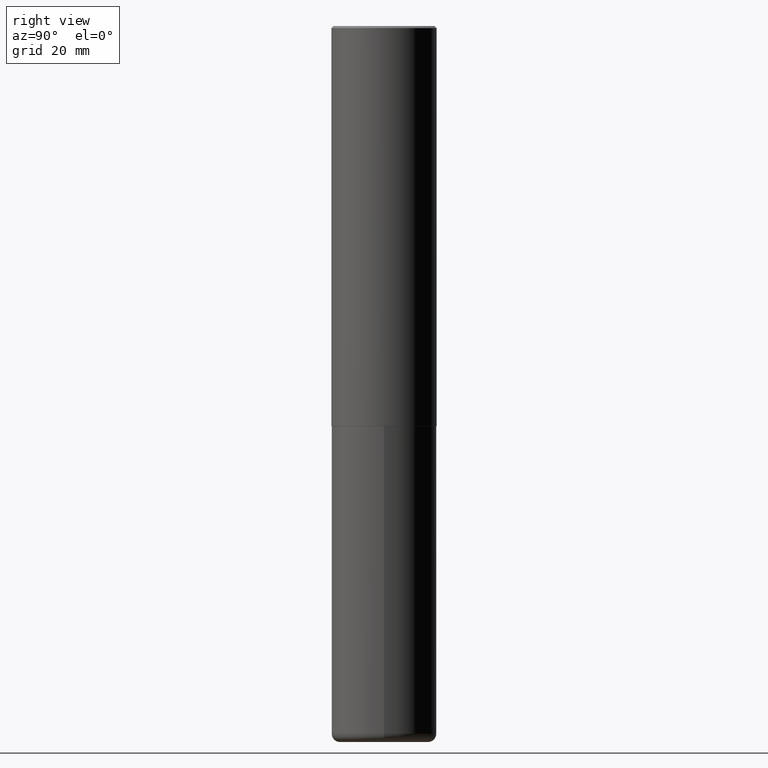
[diagram: clean part render]
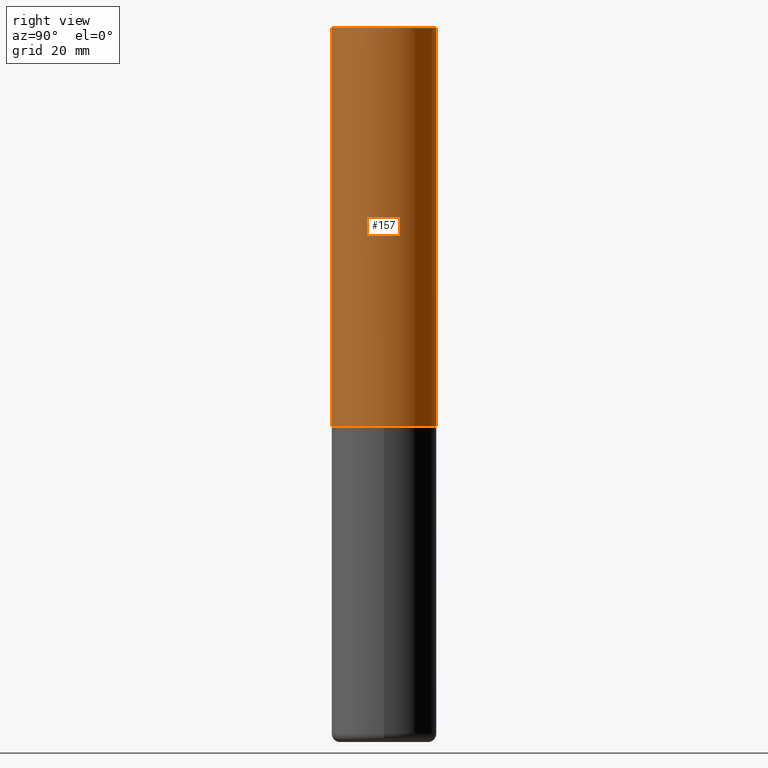
[diagram: same view with one face highlighted and labeled with its STEP entity id]
A machine part, right view. The second image highlights one B-rep face of the part: STEP entity #157.
In plain terms, the highlighted cylindrical surface (partial cylindrical patch) has radius 12.5006 mm, axis along (-0, 0, 1).
Its self-contained STEP definition (entity closure, byte-faithful):
#13 = CIRCLE ( 'NONE', #235, 0.4921500000000003650 ) ;
#14 = VECTOR ( 'NONE', #324, 39.37007874015748143 ) ;
#15 = VERTEX_POINT ( 'NONE', #89 ) ;
#23 = DIRECTION ( 'NONE',  ( -6.982962677686265922E-15, -1.000000000000000000, 3.330506545156063496E-15 ) ) ;
#40 = VERTEX_POINT ( 'NONE', #220 ) ;
#51 = EDGE_CURVE ( 'NONE', #15, #392, #354, .T. ) ;
#52 = CARTESIAN_POINT ( 'NONE',  ( 4.891953188903329688E-31, -6.981508314288001687E-17, -0.02000000000000010797 ) ) ;
#77 = ORIENTED_EDGE ( 'NONE', *, *, #51, .F. ) ;
#89 = CARTESIAN_POINT ( 'NONE',  ( -3.376394089603257868E-15, -0.4921499999999999764, -0.01999999999999839059 ) ) ;
#90 = DIRECTION ( 'NONE',  ( -6.982962677686265922E-15, -1.000000000000000000, 3.490754157143982552E-15 ) ) ;
#95 = CARTESIAN_POINT ( 'NONE',  ( 3.496936074043333291E-15, 0.4921500000000000874, -1.717974658438411319E-15 ) ) ;
#108 = CARTESIAN_POINT ( 'NONE',  ( 3.436665081823295777E-15, 0.4921499999999998098, -0.02000000000000182188 ) ) ;
#110 = EDGE_LOOP ( 'NONE', ( #173, #147, #77, #143 ) ) ;
#121 = FACE_OUTER_BOUND ( 'NONE', #110, .T. ) ;
#131 = DIRECTION ( 'NONE',  ( -2.445976594451651672E-29, 3.490754157143982552E-15, 1.000000000000000000 ) ) ;
#135 = AXIS2_PLACEMENT_3D ( 'NONE', #377, #340, #90 ) ;
#136 = EDGE_CURVE ( 'NONE', #308, #40, #13, .T. ) ;
#143 = ORIENTED_EDGE ( 'NONE', *, *, #202, .F. ) ;
#147 = ORIENTED_EDGE ( 'NONE', *, *, #223, .T. ) ;
#153 = DIRECTION ( 'NONE',  ( -6.982962677686265922E-15, -1.000000000000000000, 3.486624039460257331E-15 ) ) ;
#157 = ADVANCED_FACE ( 'NONE', ( #121 ), #252, .T. ) ;
#163 = AXIS2_PLACEMENT_3D ( 'NONE', #52, #287, #153 ) ;
#173 = ORIENTED_EDGE ( 'NONE', *, *, #136, .T. ) ;
#183 = DIRECTION ( 'NONE',  ( -2.445976594451651952E-29, 3.490754157143982552E-15, 1.000000000000000000 ) ) ;
#201 = LINE ( 'NONE', #95, #14 ) ;
#202 = EDGE_CURVE ( 'NONE', #308, #15, #260, .T. ) ;
#220 = CARTESIAN_POINT ( 'NONE',  ( 3.496936074043380229E-15, 0.4921499999999873198, -3.739100000000002311 ) ) ;
#223 = EDGE_CURVE ( 'NONE', #40, #392, #201, .T. ) ;
#235 = AXIS2_PLACEMENT_3D ( 'NONE', #282, #183, #23 ) ;
#252 = CYLINDRICAL_SURFACE ( 'NONE', #135, 0.4921500000000000874 ) ;
#260 = LINE ( 'NONE', #292, #369 ) ;
#282 = CARTESIAN_POINT ( 'NONE',  ( 9.145751084314172604E-29, -1.305227886897706845E-14, -3.739100000000000534 ) ) ;
#287 = DIRECTION ( 'NONE',  ( -2.445976594451651952E-29, 3.490754157143982552E-15, 1.000000000000000000 ) ) ;
#292 = CARTESIAN_POINT ( 'NONE',  ( -3.436665081823296565E-15, -0.4921500000000000874, 1.717974658438411319E-15 ) ) ;
#308 = VERTEX_POINT ( 'NONE', #322 ) ;
#322 = CARTESIAN_POINT ( 'NONE',  ( -3.436665081823207030E-15, -0.4921500000000134101, -3.739099999999998758 ) ) ;
#324 = DIRECTION ( 'NONE',  ( -2.445976594451651672E-29, 3.490754157143982552E-15, 1.000000000000000000 ) ) ;
#340 = DIRECTION ( 'NONE',  ( -2.445976594451651952E-29, 3.490754157143982552E-15, 1.000000000000000000 ) ) ;
#354 = CIRCLE ( 'NONE', #163, 0.4921499999999999209 ) ;
#369 = VECTOR ( 'NONE', #131, 39.37007874015748143 ) ;
#377 = CARTESIAN_POINT ( 'NONE',  ( 0.000000000000000000, 0.000000000000000000, 0.000000000000000000 ) ) ;
#392 = VERTEX_POINT ( 'NONE', #108 ) ;